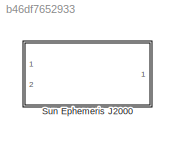
MODEL slx_b46df7652933
KIND library
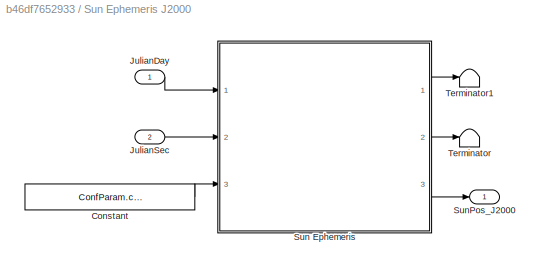
BLOCK [SubSystem] Sun Ephemeris J2000
  Ports = [2, 1]
  RequestExecContextInheritance = off
BLOCK [Constant] Sun Ephemeris J2000/Constant
  Value = ConfParam.confSunEphem.sdata
BLOCK [Inport] Sun Ephemeris J2000/JulianDay
  IconDisplay = Port number
BLOCK [Inport] Sun Ephemeris J2000/JulianSec
  IconDisplay = Port number
  Port = 2
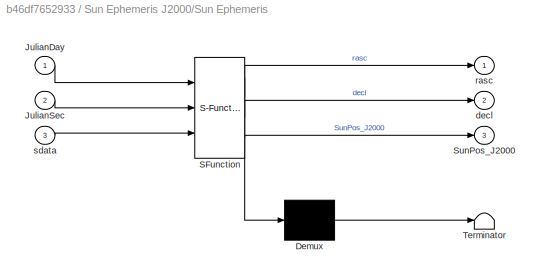
BLOCK [SubSystem] Sun Ephemeris J2000/Sun Ephemeris
  ErrorFcn = Stateflow.Translate.translate
  PermitHierarchicalResolution = ExplicitOnly
  Ports = [3, 3]
  RequestExecContextInheritance = off
  SFBlockType = MATLAB Function
  TreatAsAtomicUnit = on
BLOCK [Demux] Sun Ephemeris J2000/Sun Ephemeris/ Demux 
  Outputs = 1
  Ports = [1, 1]
BLOCK [S-Function] Sun Ephemeris J2000/Sun Ephemeris/ SFunction 
  EnableBusSupport = off
  FunctionName = sf_sfun
  PortCounts = [3 4]
  Ports = [3, 4]
  Tag = Stateflow S-Function SunEphemeris_MathWorks 2
BLOCK [Terminator] Sun Ephemeris J2000/Sun Ephemeris/ Terminator 
BLOCK [Inport] Sun Ephemeris J2000/Sun Ephemeris/JulianDay
  IconDisplay = Port number
BLOCK [Inport] Sun Ephemeris J2000/Sun Ephemeris/JulianSec
  IconDisplay = Port number
  Port = 2
BLOCK [Outport] Sun Ephemeris J2000/Sun Ephemeris/SunPos_J2000
  IconDisplay = Port number
  Port = 3
BLOCK [Outport] Sun Ephemeris J2000/Sun Ephemeris/decl
  IconDisplay = Port number
  Port = 2
BLOCK [Outport] Sun Ephemeris J2000/Sun Ephemeris/rasc
  IconDisplay = Port number
BLOCK [Inport] Sun Ephemeris J2000/Sun Ephemeris/sdata
  IconDisplay = Port number
  Port = 3
BLOCK [Outport] Sun Ephemeris J2000/SunPos_J2000
  IconDisplay = Port number
BLOCK [Terminator] Sun Ephemeris J2000/Terminator
BLOCK [Terminator] Sun Ephemeris J2000/Terminator1
LINE Sun Ephemeris J2000/Constant:1 -> Sun Ephemeris J2000/Sun Ephemeris:3
LINE Sun Ephemeris J2000/JulianDay:1 -> Sun Ephemeris J2000/Sun Ephemeris:1
LINE Sun Ephemeris J2000/JulianSec:1 -> Sun Ephemeris J2000/Sun Ephemeris:2
LINE Sun Ephemeris J2000/Sun Ephemeris:1 -> Sun Ephemeris J2000/Terminator1:1
LINE Sun Ephemeris J2000/Sun Ephemeris:2 -> Sun Ephemeris J2000/Terminator:1
LINE Sun Ephemeris J2000/Sun Ephemeris:3 -> Sun Ephemeris J2000/SunPos_J2000:1
CHART Sun Ephemeris J2000/Sun Ephemeris states=1 transitions=1
  STATE_LABEL 'eML_blk_kernel()'
  STATE_LABEL 'SCRIPT:\nfunction [rasc, decl, SunPos_J2000] = SunEphem (JulianDay, JulianSec, sdata)\n\n% precision ephemeris of the Sun\n\n% input\n    \n%  jdate = julian ephemeris date\n\n% output\n\n%  rasc = right ascension of the Sun (radians)\n%         (0 <= rasc <= 2 pi)\n%  decl = declination of the Sun (radians)\n%         (-pi/2 <= decl <= pi/2)\n%  rsun = eci position vector of the Sun (meters)\n\n% note\n\n%  coordin...<+1809ch>'
